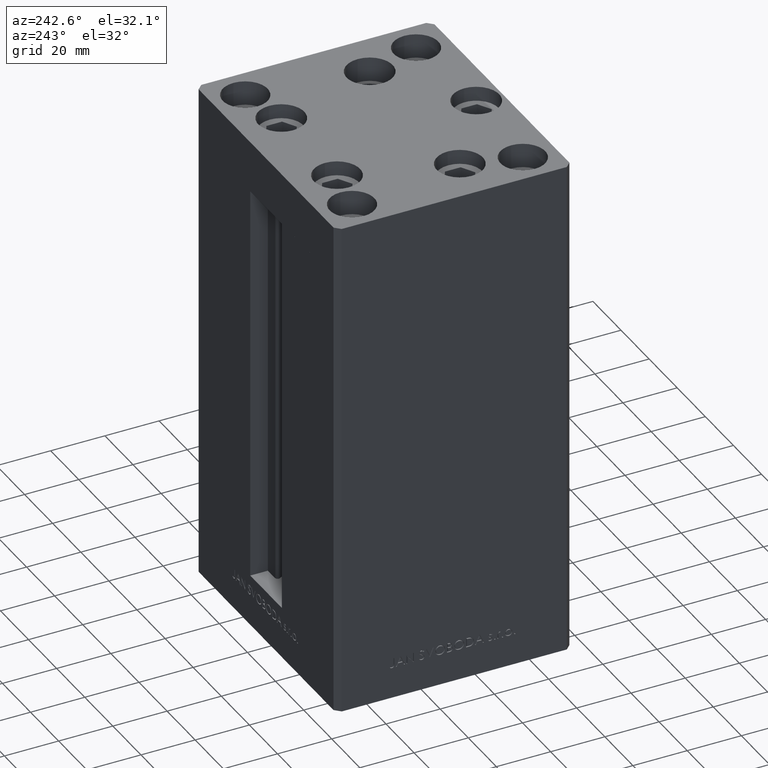
[diagram: clean part render]
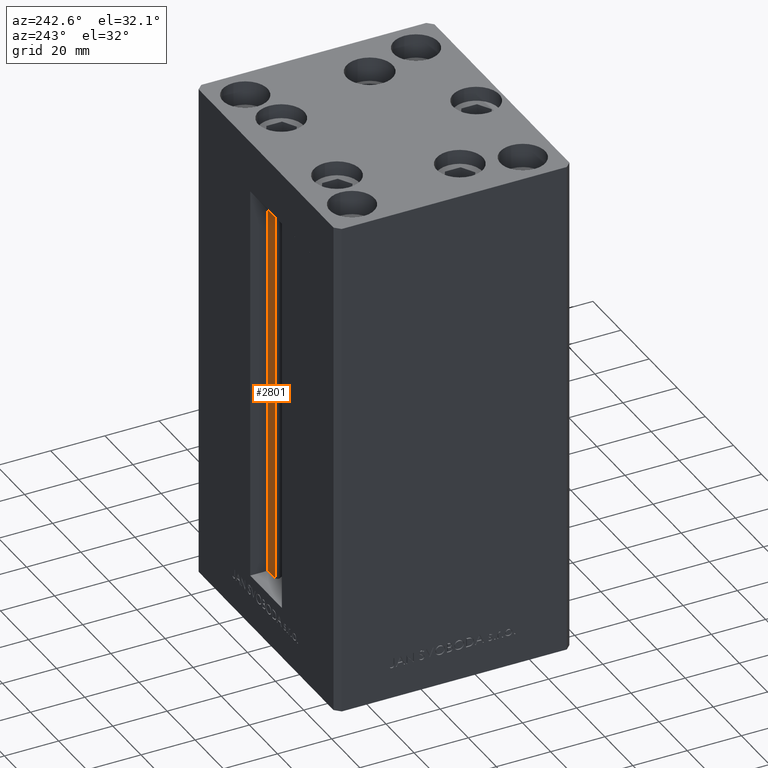
[diagram: same view with one face highlighted and labeled with its STEP entity id]
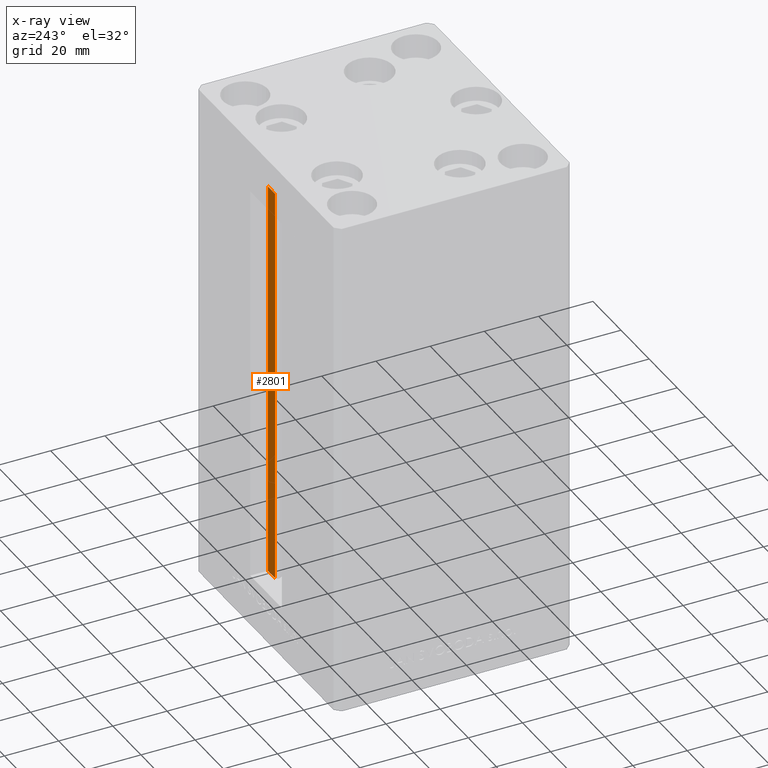
[diagram: x-ray of the same camera — body ghosted, the highlighted face saturated]
A machine part, auxiliary view. The second image highlights one B-rep face of the part: STEP entity #2801.
The next image is the same camera in x-ray: the body ghosted, the highlighted face saturated — about 0% of this face is hidden behind the body in this view.
In plain terms, the highlighted planar face has unit normal (0, -1, 0).
Its self-contained STEP definition (entity closure, byte-faithful):
#2801 = ADVANCED_FACE ( 'NONE', ( #35534 ), #15469, .F. ) ;
#2993 = CARTESIAN_POINT ( 'NONE',  ( 6.183333333333997928, 36.99999999999999289, 148.5000000000000000 ) ) ;
#3851 = LINE ( 'NONE', #7367, #40020 ) ;
#4554 = CARTESIAN_POINT ( 'NONE',  ( 6.183333333333997928, 36.99999999999999289, 0.000000000000000000 ) ) ;
#7367 = CARTESIAN_POINT ( 'NONE',  ( 11.24999999999999822, 36.99999999999999289, 0.000000000000000000 ) ) ;
#7639 = ORIENTED_EDGE ( 'NONE', *, *, #47946, .F. ) ;
#8092 = LINE ( 'NONE', #39226, #40655 ) ;
#8328 = VERTEX_POINT ( 'NONE', #2993 ) ;
#10479 = VERTEX_POINT ( 'NONE', #35583 ) ;
#10526 = DIRECTION ( 'NONE',  ( 1.000000000000000000, 0.000000000000000000, 0.000000000000000000 ) ) ;
#12212 = DIRECTION ( 'NONE',  ( 0.000000000000000000, -0.000000000000000000, -1.000000000000000000 ) ) ;
#12461 = DIRECTION ( 'NONE',  ( 0.000000000000000000, -1.000000000000000000, 0.000000000000000000 ) ) ;
#13727 = VERTEX_POINT ( 'NONE', #26035 ) ;
#14210 = EDGE_CURVE ( 'NONE', #10479, #8328, #8092, .T. ) ;
#15469 = PLANE ( 'NONE',  #30736 ) ;
#19858 = DIRECTION ( 'NONE',  ( -0.000000000000000000, -0.000000000000000000, 1.000000000000000000 ) ) ;
#21839 = CARTESIAN_POINT ( 'NONE',  ( 6.183333333333997928, 36.99999999999999289, 0.000000000000000000 ) ) ;
#23173 = DIRECTION ( 'NONE',  ( -1.000000000000000000, 0.000000000000000000, 0.000000000000000000 ) ) ;
#23371 = LINE ( 'NONE', #4554, #27395 ) ;
#26035 = CARTESIAN_POINT ( 'NONE',  ( 11.24999999999999822, 36.99999999999999289, 0.000000000000000000 ) ) ;
#26087 = LINE ( 'NONE', #21839, #44994 ) ;
#27395 = VECTOR ( 'NONE', #19858, 1000.000000000000000 ) ;
#29891 = ORIENTED_EDGE ( 'NONE', *, *, #14210, .F. ) ;
#30736 = AXIS2_PLACEMENT_3D ( 'NONE', #30782, #12461, #12212 ) ;
#30782 = CARTESIAN_POINT ( 'NONE',  ( 6.183333333333997928, 36.99999999999999289, 0.000000000000000000 ) ) ;
#35534 = FACE_OUTER_BOUND ( 'NONE', #38768, .T. ) ;
#35583 = CARTESIAN_POINT ( 'NONE',  ( 11.24999999999999822, 36.99999999999999289, 148.5000000000000000 ) ) ;
#38768 = EDGE_LOOP ( 'NONE', ( #47387, #7639, #43770, #29891 ) ) ;
#39226 = CARTESIAN_POINT ( 'NONE',  ( 0.000000000000000000, 36.99999999999999289, 148.5000000000000000 ) ) ;
#40020 = VECTOR ( 'NONE', #45518, 1000.000000000000000 ) ;
#40655 = VECTOR ( 'NONE', #23173, 1000.000000000000000 ) ;
#41413 = VERTEX_POINT ( 'NONE', #43169 ) ;
#42340 = EDGE_CURVE ( 'NONE', #13727, #10479, #3851, .T. ) ;
#43169 = CARTESIAN_POINT ( 'NONE',  ( 6.183333333333997928, 36.99999999999999289, 0.000000000000000000 ) ) ;
#43770 = ORIENTED_EDGE ( 'NONE', *, *, #48773, .T. ) ;
#44994 = VECTOR ( 'NONE', #10526, 1000.000000000000000 ) ;
#45518 = DIRECTION ( 'NONE',  ( -0.000000000000000000, -0.000000000000000000, 1.000000000000000000 ) ) ;
#47387 = ORIENTED_EDGE ( 'NONE', *, *, #42340, .F. ) ;
#47946 = EDGE_CURVE ( 'NONE', #41413, #13727, #26087, .T. ) ;
#48773 = EDGE_CURVE ( 'NONE', #41413, #8328, #23371, .T. ) ;